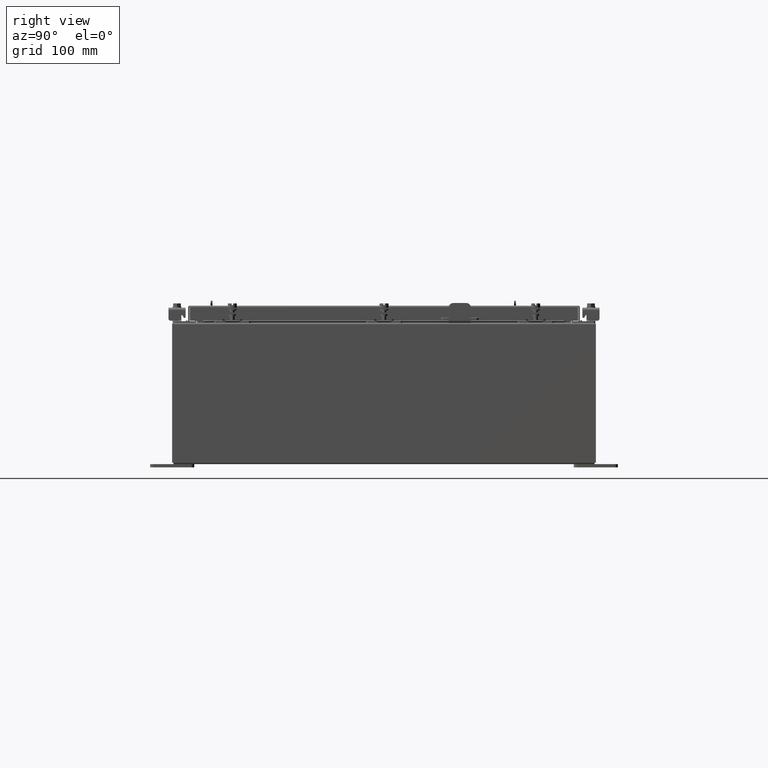
[diagram: clean part render]
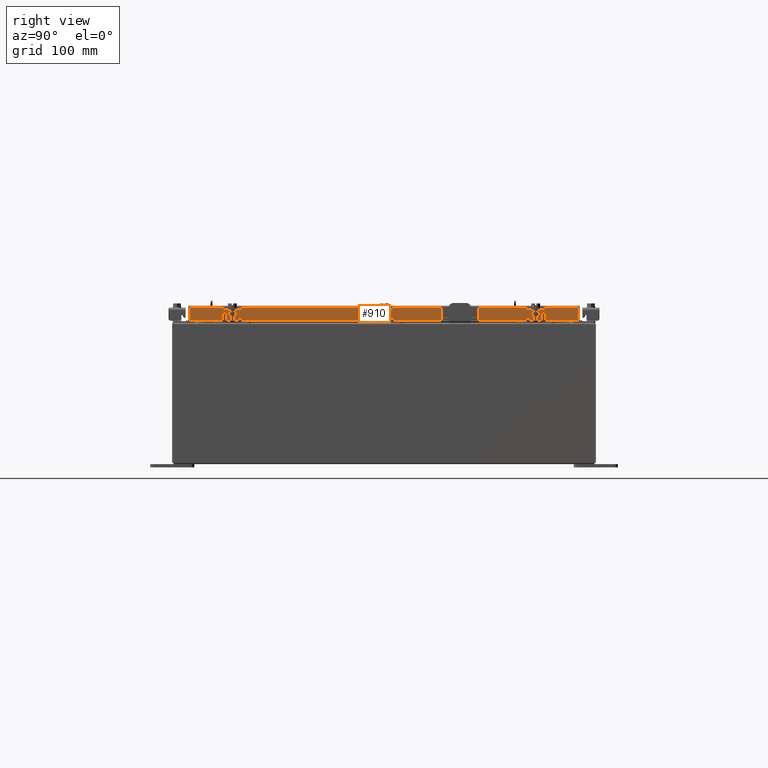
[diagram: same view with one face highlighted and labeled with its STEP entity id]
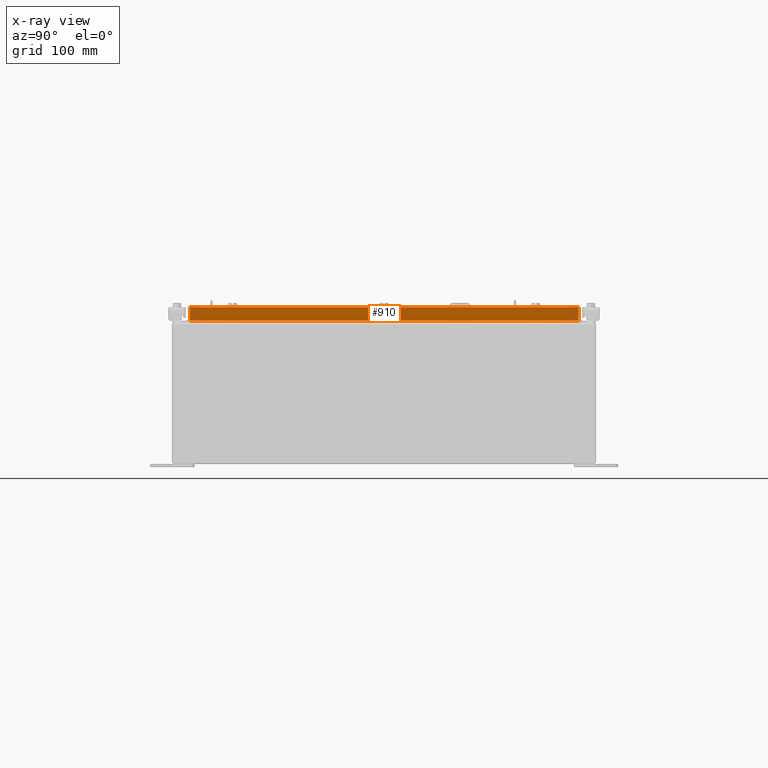
[diagram: x-ray of the same camera — body ghosted, the highlighted face saturated]
A machine part, right view. The second image highlights one B-rep face of the part: STEP entity #910.
The next image is the same camera in x-ray: the body ghosted, the highlighted face saturated — about 0% of this face is hidden behind the body in this view.
In plain terms, the highlighted planar face has unit normal (1, 0, 0).
Its self-contained STEP definition (entity closure, byte-faithful):
#910 = ADVANCED_FACE ( 'NONE', ( #2099 ), #1750, .T. ) ;
#971 = CARTESIAN_POINT ( 'NONE',  ( 14.09400000000000100, -11.00515786437626700, -0.07470000000000015500 ) ) ;
#1244 = VERTEX_POINT ( 'NONE', #13381 ) ;
#1750 = PLANE ( 'NONE',  #8225 ) ;
#1869 = VECTOR ( 'NONE', #11813, 39.37007874015748100 ) ;
#2099 = FACE_OUTER_BOUND ( 'NONE', #6533, .T. ) ;
#2186 = CARTESIAN_POINT ( 'NONE',  ( 14.09399999999999200, 10.25515786437627600, -0.8500000000000010900 ) ) ;
#2419 = VERTEX_POINT ( 'NONE', #19687 ) ;
#3020 = VECTOR ( 'NONE', #6962, 39.37007874015748100 ) ;
#3112 = ORIENTED_EDGE ( 'NONE', *, *, #11646, .T. ) ;
#3507 = DIRECTION ( 'NONE',  ( 1.000000000000000000, 0.0000000000000000000, 2.818880942772360100E-015 ) ) ;
#3568 = LINE ( 'NONE', #17471, #3020 ) ;
#3811 = CARTESIAN_POINT ( 'NONE',  ( 14.09399999999999200, 10.25515786437627600, -0.8500000000000010900 ) ) ;
#5669 = ORIENTED_EDGE ( 'NONE', *, *, #14720, .F. ) ;
#6533 = EDGE_LOOP ( 'NONE', ( #12022, #15006, #5669, #10149, #20983, #3112 ) ) ;
#6962 = DIRECTION ( 'NONE',  ( 0.0000000000000000000, -1.000000000000000000, 0.0000000000000000000 ) ) ;
#7400 = DIRECTION ( 'NONE',  ( 0.0000000000000000000, -1.000000000000000000, 0.0000000000000000000 ) ) ;
#7915 = VERTEX_POINT ( 'NONE', #14654 ) ;
#7991 = DIRECTION ( 'NONE',  ( -2.818880942772360100E-015, -6.982962677686267500E-015, 1.000000000000000000 ) ) ;
#8225 = AXIS2_PLACEMENT_3D ( 'NONE', #13942, #3507, #15768 ) ;
#8718 = LINE ( 'NONE', #16862, #12791 ) ;
#8999 = DIRECTION ( 'NONE',  ( -2.818880942772360100E-015, -6.982962677686267500E-015, 1.000000000000000000 ) ) ;
#9155 = EDGE_CURVE ( 'NONE', #7915, #1244, #20094, .T. ) ;
#9896 = VECTOR ( 'NONE', #7400, 39.37007874015748100 ) ;
#10149 = ORIENTED_EDGE ( 'NONE', *, *, #12996, .F. ) ;
#11112 = VERTEX_POINT ( 'NONE', #15860 ) ;
#11646 = EDGE_CURVE ( 'NONE', #1244, #2419, #3568, .T. ) ;
#11813 = DIRECTION ( 'NONE',  ( 0.0000000000000000000, -1.000000000000000000, 0.0000000000000000000 ) ) ;
#12022 = ORIENTED_EDGE ( 'NONE', *, *, #13662, .F. ) ;
#12194 = VERTEX_POINT ( 'NONE', #17150 ) ;
#12791 = VECTOR ( 'NONE', #13277, 39.37007874015748100 ) ;
#12996 = EDGE_CURVE ( 'NONE', #7915, #14672, #8718, .T. ) ;
#13118 = EDGE_CURVE ( 'NONE', #11112, #12194, #20519, .T. ) ;
#13277 = DIRECTION ( 'NONE',  ( 0.0000000000000000000, -1.000000000000000000, 0.0000000000000000000 ) ) ;
#13381 = CARTESIAN_POINT ( 'NONE',  ( 14.09400000000000100, 11.00515786437627100, -0.08770000000000026400 ) ) ;
#13662 = EDGE_CURVE ( 'NONE', #12194, #2419, #15824, .T. ) ;
#13942 = CARTESIAN_POINT ( 'NONE',  ( 14.09400000000000100, 0.0000000000000000000, 4.043135030623109600E-014 ) ) ;
#14654 = CARTESIAN_POINT ( 'NONE',  ( 14.09400000000000300, 11.00515786437627200, -0.8499999999999999800 ) ) ;
#14672 = VERTEX_POINT ( 'NONE', #3811 ) ;
#14720 = EDGE_CURVE ( 'NONE', #14672, #11112, #15135, .T. ) ;
#15006 = ORIENTED_EDGE ( 'NONE', *, *, #13118, .F. ) ;
#15135 = LINE ( 'NONE', #2186, #9896 ) ;
#15265 = VECTOR ( 'NONE', #7991, 39.37007874015748100 ) ;
#15768 = DIRECTION ( 'NONE',  ( 2.818880942772360100E-015, 0.0000000000000000000, -1.000000000000000000 ) ) ;
#15824 = LINE ( 'NONE', #971, #15265 ) ;
#15860 = CARTESIAN_POINT ( 'NONE',  ( 14.09399999999999200, -10.25515786437626000, -0.8500000000000010900 ) ) ;
#16862 = CARTESIAN_POINT ( 'NONE',  ( 14.09400000000000300, -11.09399999999999800, -0.8499999999999999800 ) ) ;
#17150 = CARTESIAN_POINT ( 'NONE',  ( 14.09400000000000300, -11.00515786437626200, -0.8499999999999999800 ) ) ;
#17164 = CARTESIAN_POINT ( 'NONE',  ( 14.09400000000000300, -11.09399999999999800, -0.8499999999999999800 ) ) ;
#17471 = CARTESIAN_POINT ( 'NONE',  ( 14.09400000000000100, 0.0000000000000000000, -0.08770000000000026400 ) ) ;
#19542 = CARTESIAN_POINT ( 'NONE',  ( 14.09400000000000100, 11.00515786437626900, 1.169230941288304600E-013 ) ) ;
#19687 = CARTESIAN_POINT ( 'NONE',  ( 14.09400000000000100, -11.00515786437626700, -0.08770000000000026400 ) ) ;
#20094 = LINE ( 'NONE', #19542, #21162 ) ;
#20519 = LINE ( 'NONE', #17164, #1869 ) ;
#20983 = ORIENTED_EDGE ( 'NONE', *, *, #9155, .T. ) ;
#21162 = VECTOR ( 'NONE', #8999, 39.37007874015748100 ) ;